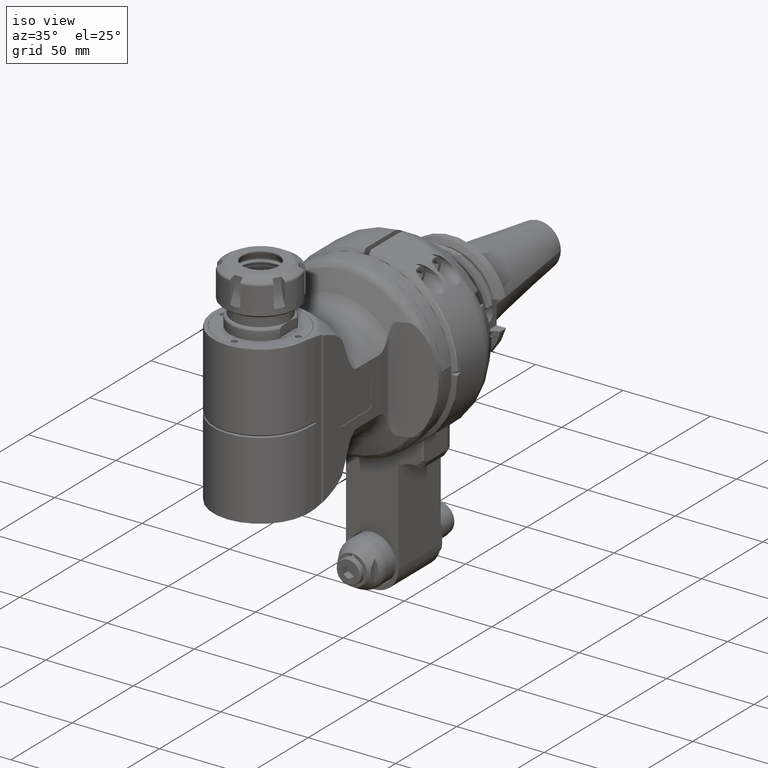
[diagram: clean part render]
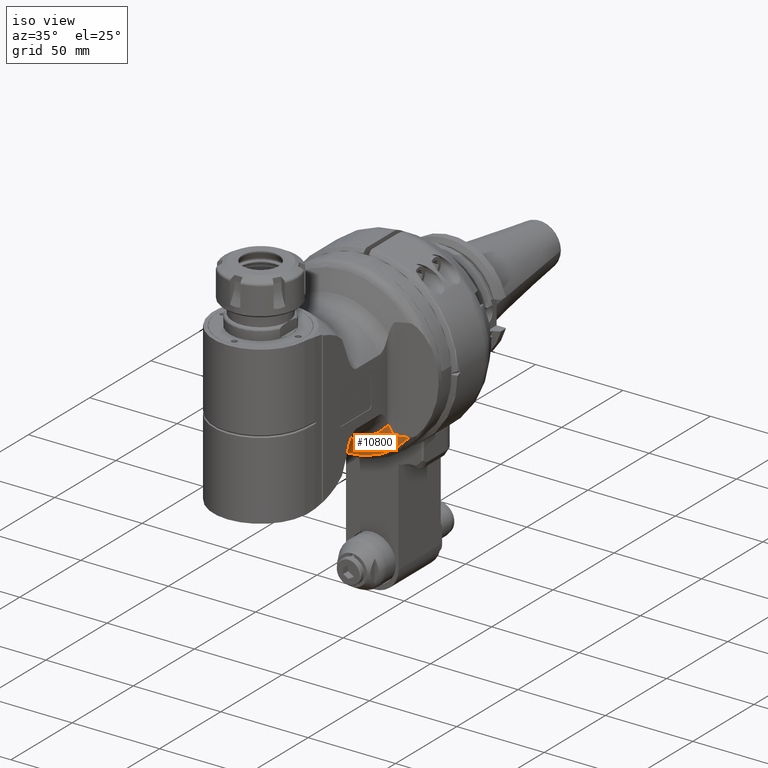
[diagram: same view with one face highlighted and labeled with its STEP entity id]
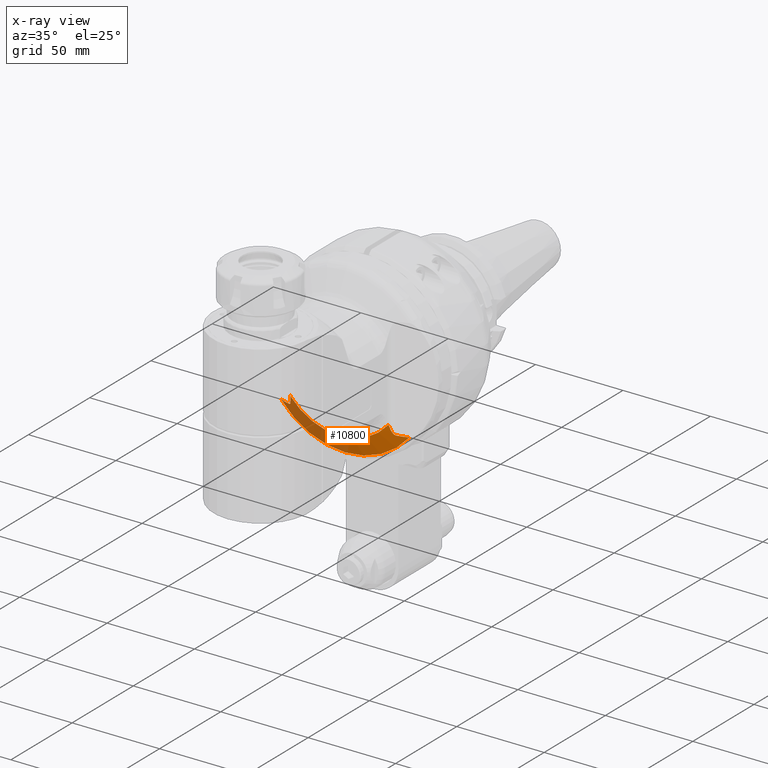
[diagram: x-ray of the same camera — body ghosted, the highlighted face saturated]
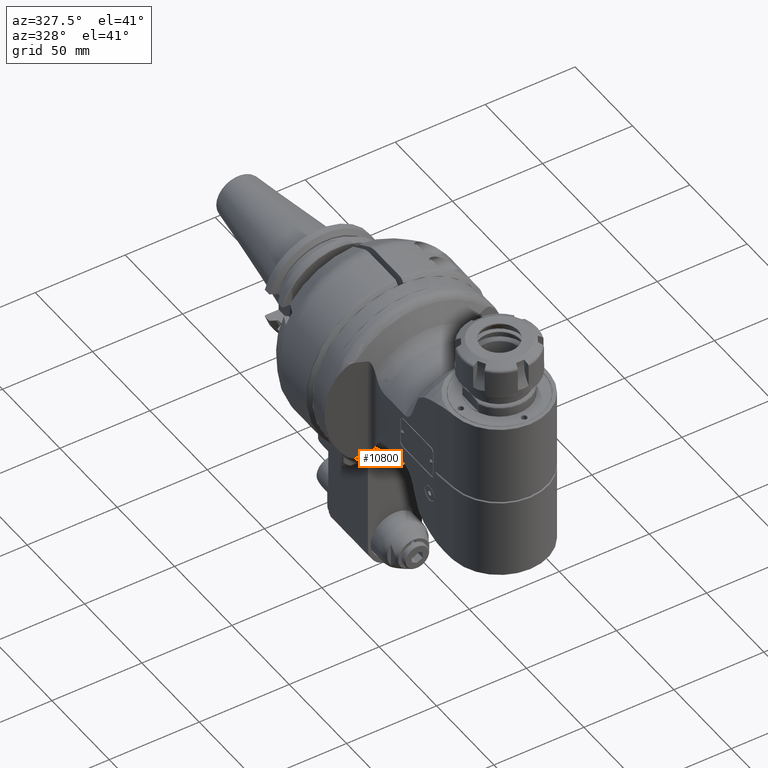
[diagram: same view with one face highlighted and labeled with its STEP entity id]
A machine part, iso view. The second image highlights one B-rep face of the part: STEP entity #10800.
The next image is the same camera in x-ray: the body ghosted, the highlighted face saturated — about 47% of this face is hidden behind the body in this view.
A second angle (auxiliary view) of the same face is appended — the face is thin or edge-on in the first view.
In plain terms, the highlighted conical surface has half-angle 65 deg.
Its self-contained STEP definition (entity closure, byte-faithful):
#51=ELLIPSE('',#12003,50.3672702558906,29.5863002294594);
#52=ELLIPSE('',#12005,50.3672702558906,29.5863002294594);
#296=B_SPLINE_CURVE_WITH_KNOTS('',3,(#21283,#21284,#21285,#21286,#21287,
#21288,#21289,#21290,#21291,#21292,#21293,#21294,#21295,#21296,#21297,#21298),
 .UNSPECIFIED.,.F.,.F.,(4,2,2,2,2,2,2,4),(8.88484297411853,8.88995769916191,
8.93555493109357,8.98115216302524,9.07589668030658,9.17064119758792,9.36013023215059,
9.59514006222438),.UNSPECIFIED.);
#314=B_SPLINE_CURVE_WITH_KNOTS('',3,(#21710,#21711,#21712,#21713,#21714,
#21715,#21716,#21717,#21718,#21719,#21720,#21721,#21722,#21723,#21724,#21725),
 .UNSPECIFIED.,.F.,.F.,(4,2,2,2,2,2,2,4),(-2.96280115665136,-2.95768643160798,
-2.91208919967632,-2.86649196774465,-2.77174745046331,-2.67700293318197,
-2.4875138986193,-2.25250406863222),.UNSPECIFIED.);
#456=CONICAL_SURFACE('',#12002,41.8660726827,1.13446401379631);
#2896=FACE_OUTER_BOUND('',#3614,.T.);
#3614=EDGE_LOOP('',(#9504,#9505,#9506,#9507,#9508,#9509));
#4274=CIRCLE('',#11980,36.61905390607);
#4285=CIRCLE('',#12004,47.11309145933);
#5166=VERTEX_POINT('',#21275);
#5167=VERTEX_POINT('',#21282);
#5238=VERTEX_POINT('',#21707);
#5239=VERTEX_POINT('',#21709);
#5240=VERTEX_POINT('',#21755);
#5241=VERTEX_POINT('',#21757);
#6606=EDGE_CURVE('',#5167,#5166,#296,.T.);
#6695=EDGE_CURVE('',#5238,#5239,#314,.T.);
#6698=EDGE_CURVE('',#5239,#5166,#4274,.T.);
#6709=EDGE_CURVE('',#5240,#5238,#51,.T.);
#6710=EDGE_CURVE('',#5241,#5240,#4285,.T.);
#6711=EDGE_CURVE('',#5167,#5241,#52,.T.);
#9504=ORIENTED_EDGE('',*,*,#6606,.T.);
#9505=ORIENTED_EDGE('',*,*,#6698,.F.);
#9506=ORIENTED_EDGE('',*,*,#6695,.F.);
#9507=ORIENTED_EDGE('',*,*,#6709,.F.);
#9508=ORIENTED_EDGE('',*,*,#6710,.F.);
#9509=ORIENTED_EDGE('',*,*,#6711,.F.);
#10800=ADVANCED_FACE('',(#2896),#456,.T.);
#11980=AXIS2_PLACEMENT_3D('',#21732,#14782,#14783);
#12002=AXIS2_PLACEMENT_3D('',#21754,#14826,#14827);
#12003=AXIS2_PLACEMENT_3D('',#21756,#14828,#14829);
#12004=AXIS2_PLACEMENT_3D('',#21758,#14830,#14831);
#12005=AXIS2_PLACEMENT_3D('',#21759,#14832,#14833);
#14782=DIRECTION('center_axis',(1.,0.,0.));
#14783=DIRECTION('ref_axis',(0.,0.639797587775472,-0.768543457897266));
#14826=DIRECTION('center_axis',(-1.,0.,0.));
#14827=DIRECTION('ref_axis',(0.,1.,1.15843457389328E-10));
#14828=DIRECTION('center_axis',(0.939692620785897,0.,-0.342020143325699));
#14829=DIRECTION('ref_axis',(-0.342020143325699,3.16985680890781E-15,-0.939692620785897));
#14830=DIRECTION('center_axis',(-1.,0.,0.));
#14831=DIRECTION('ref_axis',(0.,1.,1.598497119257E-10));
#14832=DIRECTION('center_axis',(0.939692620785897,0.,0.342020143325699));
#14833=DIRECTION('ref_axis',(-0.342020143325699,1.39349996950756E-15,0.939692620785897));
#21275=CARTESIAN_POINT('',(25.73963757676,23.42878235566,28.14333431387));
#21282=CARTESIAN_POINT('',(23.04205971778,29.32212693045,30.6319194267));
#21283=CARTESIAN_POINT('Ctrl Pts',(23.0420597177758,29.3221269304432,30.631919426699));
#21284=CARTESIAN_POINT('Ctrl Pts',(23.0479744620128,29.3207602586374,30.6156688004658));
#21285=CARTESIAN_POINT('Ctrl Pts',(23.0539377860212,29.3190340016176,30.5996130290237));
#21286=CARTESIAN_POINT('Ctrl Pts',(23.1133495043163,29.2986325774339,30.4426783205164));
#21287=CARTESIAN_POINT('Ctrl Pts',(23.1773919197054,29.249346732277,30.2993398090731));
#21288=CARTESIAN_POINT('Ctrl Pts',(23.3117990365375,29.1046306458268,30.0383141688465));
#21289=CARTESIAN_POINT('Ctrl Pts',(23.3820660952745,29.0100510435127,29.9201061184463));
#21290=CARTESIAN_POINT('Ctrl Pts',(23.5797693822813,28.7149196194402,29.6157163221687));
#21291=CARTESIAN_POINT('Ctrl Pts',(23.7070096664023,28.4859175959178,29.4577382988407));
#21292=CARTESIAN_POINT('Ctrl Pts',(23.9571216555149,28.0003306800713,29.1807555298384));
#21293=CARTESIAN_POINT('Ctrl Pts',(24.0797213060653,27.7424335272339,29.0638111388053));
#21294=CARTESIAN_POINT('Ctrl Pts',(24.4446386638933,26.9342653049124,28.7518069050939));
#21295=CARTESIAN_POINT('Ctrl Pts',(24.6829488590399,26.3520915975708,28.5964207566113));
#21296=CARTESIAN_POINT('Ctrl Pts',(25.204877488702,24.9916302315353,28.3175745009316));
#21297=CARTESIAN_POINT('Ctrl Pts',(25.4826199045026,24.205316094058,28.2140547963683));
#21298=CARTESIAN_POINT('Ctrl Pts',(25.7396375767384,23.4287823556506,28.1433343138946));
#21707=CARTESIAN_POINT('',(23.04205971778,29.32212693045,-30.6319194267));
#21709=CARTESIAN_POINT('',(25.73963757645,23.42878235651,-28.14333431396));
#21710=CARTESIAN_POINT('Ctrl Pts',(23.0420597177758,29.3221269304432,-30.631919426699));
#21711=CARTESIAN_POINT('Ctrl Pts',(23.0479744620128,29.3207602586374,-30.6156688004658));
#21712=CARTESIAN_POINT('Ctrl Pts',(23.0539377860212,29.3190340016176,-30.5996130290237));
#21713=CARTESIAN_POINT('Ctrl Pts',(23.1133495043163,29.2986325774339,-30.4426783205164));
#21714=CARTESIAN_POINT('Ctrl Pts',(23.1773919197054,29.249346732277,-30.2993398090731));
#21715=CARTESIAN_POINT('Ctrl Pts',(23.3117990365375,29.1046306458268,-30.0383141688465));
#21716=CARTESIAN_POINT('Ctrl Pts',(23.3820660952745,29.0100510435127,-29.9201061184463));
#21717=CARTESIAN_POINT('Ctrl Pts',(23.5797693822813,28.7149196194402,-29.6157163221687));
#21718=CARTESIAN_POINT('Ctrl Pts',(23.7070096664023,28.4859175959178,-29.4577382988407));
#21719=CARTESIAN_POINT('Ctrl Pts',(23.9571216555149,28.0003306800713,-29.1807555298384));
#21720=CARTESIAN_POINT('Ctrl Pts',(24.0797213060653,27.7424335272339,-29.0638111388053));
#21721=CARTESIAN_POINT('Ctrl Pts',(24.4446386638933,26.9342653049124,-28.7518069050939));
#21722=CARTESIAN_POINT('Ctrl Pts',(24.6829488590399,26.3520915975708,-28.5964207566113));
#21723=CARTESIAN_POINT('Ctrl Pts',(25.2048774885954,24.9916302318132,-28.3175745009886));
#21724=CARTESIAN_POINT('Ctrl Pts',(25.4826199042977,24.2053160946382,-28.2140547964451));
#21725=CARTESIAN_POINT('Ctrl Pts',(25.7396375764539,23.4287823565101,-28.1433343139729));
#21732=CARTESIAN_POINT('Origin',(25.73963757672,0.,0.));
#21754=CARTESIAN_POINT('Origin',(23.29291253869,0.,0.));
#21755=CARTESIAN_POINT('',(20.8461875045415,29.5857914056551,-36.6650287463848));
#21756=CARTESIAN_POINT('Origin',(20.7451569433893,5.32907051820075E-14,
-36.9426079340045));
#21757=CARTESIAN_POINT('',(20.8461875004803,29.5857914026295,36.6650287600173));
#21758=CARTESIAN_POINT('Origin',(20.84618750067,0.,0.));
#21759=CARTESIAN_POINT('Origin',(20.7451569433892,1.77635683940025E-14,
36.9426079340045));